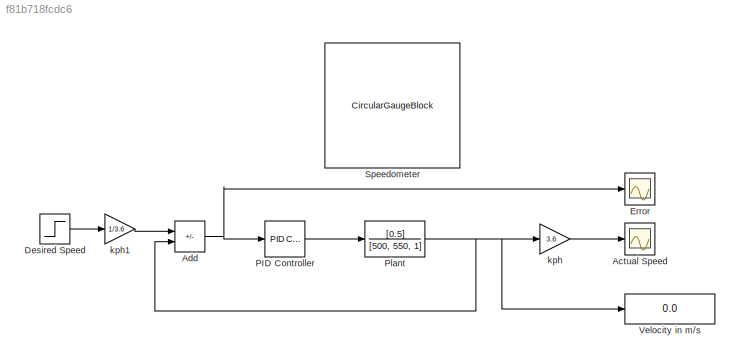
MODEL slx_f81b718fcdc6
KIND model
CONFIG AbsTol = auto
CONFIG EnableMultiTasking = off
CONFIG FixedStep = auto
CONFIG MaxStep = auto
CONFIG MinStep = auto
CONFIG RelTol = 1e-3
CONFIG SampleTimeConstraint = Unconstrained
CONFIG SolverName = VariableStepAuto
CONFIG StartTime = 0.0
CONFIG StopTime = 1000
BLOCK [Scope] Actual Speed
  Floating = off
  NumInputPorts = 1
  ScopeSpecificationString = Simulink.scopes.TimeScopeBlockCfg('CurrentConfiguration', extmgr.ConfigurationSet(extmgr.Configuration('Core','General UI',true),extmgr.Configuration('Core','Source UI',true),extmgr.Configuration('Sources','WiredSimulink',true),extmgr.Configuration('Visuals','Time Domain',true,'SerializedDisplays',{struct('MinYLimReal','-16.12988','MaxYLimReal','145.16888','YLabelReal','','MinYLimMag','0.00000','M...<+1388ch>
BLOCK [Sum] Add
  IconShape = rectangular
  Inputs = +-
BLOCK [Step] Desired Speed
  After = 80
  SampleTime = 0
BLOCK [Scope] Error
  Floating = off
  NumInputPorts = 1
  ScopeSpecificationString = Simulink.scopes.TimeScopeBlockCfg('CurrentConfiguration', extmgr.ConfigurationSet(extmgr.Configuration('Core','General UI',true),extmgr.Configuration('Core','Source UI',true),extmgr.Configuration('Sources','WiredSimulink',true,'DataLoggingVariableName','ScopeData1'),extmgr.Configuration('Visuals','Time Domain',true,'SerializedDisplays',{struct('MinYLimReal','-18.10247','MaxYLimReal','26.70274','YL...<+1394ch>
BLOCK [Reference] PID Controller  REF=slpidlib/PID Controller
  LibrarySourceBlock = simulink/Continuous/PID Controller
  SourceBlock = slpidlib/PID Controller
  SourceType = PID 1dof
BLOCK [TransferFcn] Plant
  Denominator = [500, 550, 1]
  Numerator = [0.5]
BLOCK [CircularGaugeBlock] Speedometer
  ScaleMax = 200
BLOCK [Display] Velocity in m//s
  Decimation = 1
BLOCK [Gain] kph
  Gain = 3.6
BLOCK [Gain] kph1
  Gain = 1/3.6
NET Add:1 -> Error:1, PID Controller:1
LINE Desired Speed:1 -> kph1:1
LINE PID Controller:1 -> Plant:1
NET Plant:1 -> Add:2, Velocity in m//s:1, kph:1
LINE kph1:1 -> Add:1
LINE kph:1 -> Actual Speed:1
note: NET lines group one-source signal fan-out (src -> all destinations, sorted); 1:1 wires keep LINE
